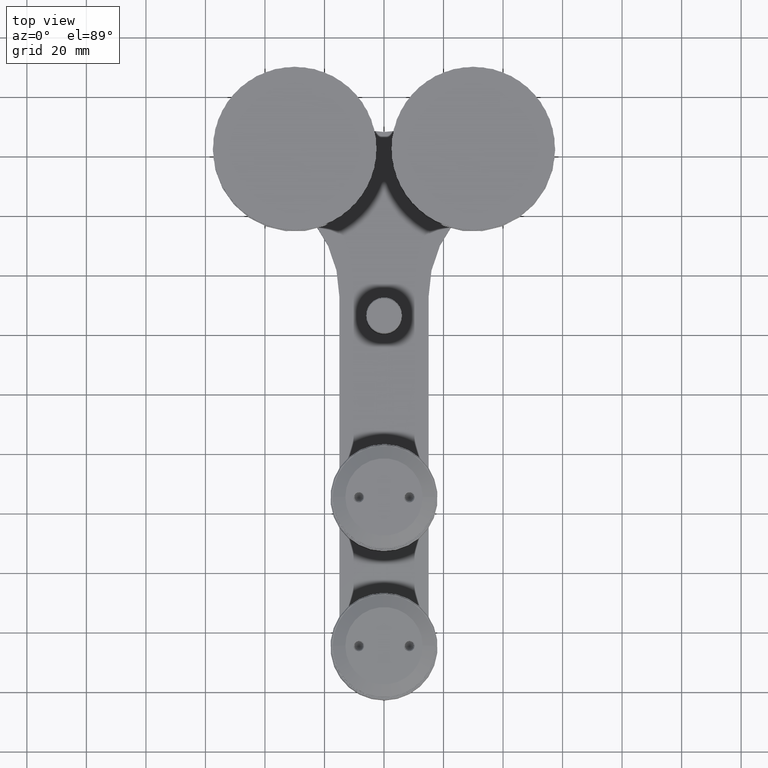
[diagram: clean part render]
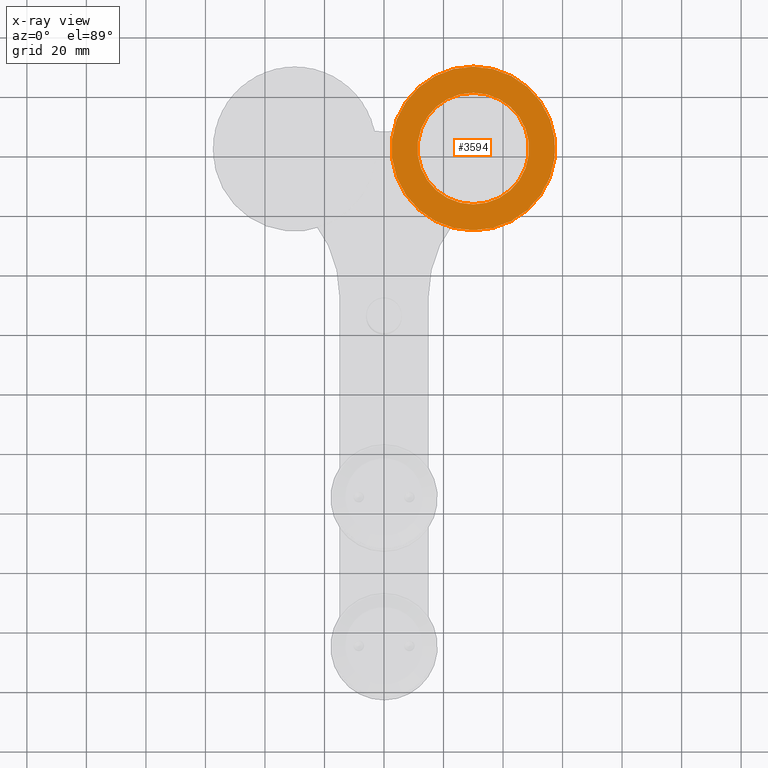
[diagram: x-ray — body ghosted, one internal face saturated and labeled with its STEP entity id]
A machine part, top view, then the same camera in x-ray: the body is ghosted and one INTERNAL B-rep face — a face not visible from any outside direction — is saturated and labeled: STEP entity #3594.
In plain terms, the highlighted planar face has unit normal (0, -0, -1).
Its self-contained STEP definition (entity closure, byte-faithful):
#258 = VERTEX_POINT ( 'NONE', #46003 ) ;
#613 = CIRCLE ( 'NONE', #13276, 27.50000000000000000 ) ;
#795 = DIRECTION ( 'NONE',  ( -0.0000000000000000000, -4.866999562630479900E-017, -1.000000000000000000 ) ) ;
#1369 = CARTESIAN_POINT ( 'NONE',  ( 0.0000000000000000000, -9.733999125260946200E-017, 19.00000000000000400 ) ) ;
#2999 = EDGE_CURVE ( 'NONE', #31072, #6381, #10195, .T. ) ;
#3551 = PLANE ( 'NONE',  #25782 ) ;
#3594 = ADVANCED_FACE ( 'NONE', ( #39828, #30318 ), #3551, .T. ) ;
#4311 = ORIENTED_EDGE ( 'NONE', *, *, #2999, .T. ) ;
#4445 = CIRCLE ( 'NONE', #33609, 18.74999999999999600 ) ;
#4833 = CARTESIAN_POINT ( 'NONE',  ( 3.367778697655221300E-015, -27.50000000000000000, 19.00000000000000400 ) ) ;
#6188 = EDGE_CURVE ( 'NONE', #8624, #258, #4445, .T. ) ;
#6381 = VERTEX_POINT ( 'NONE', #4833 ) ;
#7117 = DIRECTION ( 'NONE',  ( 0.0000000000000000000, -4.866999562630479900E-017, -1.000000000000000000 ) ) ;
#7633 = CARTESIAN_POINT ( 'NONE',  ( 0.0000000000000000000, -9.733999125260946200E-017, 19.00000000000000400 ) ) ;
#8012 = EDGE_LOOP ( 'NONE', ( #4311, #43703 ) ) ;
#8577 = CARTESIAN_POINT ( 'NONE',  ( 2.296212748401286800E-015, -18.74999999999999600, 19.00000000000000400 ) ) ;
#8624 = VERTEX_POINT ( 'NONE', #8577 ) ;
#10195 = CIRCLE ( 'NONE', #16460, 27.50000000000000000 ) ;
#11124 = DIRECTION ( 'NONE',  ( -0.0000000000000000000, -4.866999562630479900E-017, -1.000000000000000000 ) ) ;
#11131 = DIRECTION ( 'NONE',  ( 0.0000000000000000000, 1.000000000000000000, 0.0000000000000000000 ) ) ;
#11278 = DIRECTION ( 'NONE',  ( 0.0000000000000000000, 1.000000000000000000, 0.0000000000000000000 ) ) ;
#13216 = ORIENTED_EDGE ( 'NONE', *, *, #28403, .F. ) ;
#13276 = AXIS2_PLACEMENT_3D ( 'NONE', #7633, #795, #22310 ) ;
#16361 = CIRCLE ( 'NONE', #37470, 18.74999999999999600 ) ;
#16460 = AXIS2_PLACEMENT_3D ( 'NONE', #1369, #37604, #44506 ) ;
#19239 = EDGE_CURVE ( 'NONE', #6381, #31072, #613, .T. ) ;
#22310 = DIRECTION ( 'NONE',  ( 0.0000000000000000000, 1.000000000000000000, 0.0000000000000000000 ) ) ;
#25782 = AXIS2_PLACEMENT_3D ( 'NONE', #42319, #7117, #38852 ) ;
#28403 = EDGE_CURVE ( 'NONE', #258, #8624, #16361, .T. ) ;
#30318 = FACE_BOUND ( 'NONE', #33300, .T. ) ;
#31072 = VERTEX_POINT ( 'NONE', #34085 ) ;
#31155 = ORIENTED_EDGE ( 'NONE', *, *, #6188, .F. ) ;
#32385 = CARTESIAN_POINT ( 'NONE',  ( 0.0000000000000000000, -9.733999125260947500E-017, 19.00000000000000400 ) ) ;
#33300 = EDGE_LOOP ( 'NONE', ( #13216, #31155 ) ) ;
#33609 = AXIS2_PLACEMENT_3D ( 'NONE', #32385, #39700, #11131 ) ;
#34085 = CARTESIAN_POINT ( 'NONE',  ( 0.0000000000000000000, 27.50000000000000000, 19.00000000000000400 ) ) ;
#37470 = AXIS2_PLACEMENT_3D ( 'NONE', #39387, #11124, #11278 ) ;
#37604 = DIRECTION ( 'NONE',  ( -0.0000000000000000000, -4.866999562630479900E-017, -1.000000000000000000 ) ) ;
#38852 = DIRECTION ( 'NONE',  ( 0.0000000000000000000, 1.000000000000000000, -4.866999562630479900E-017 ) ) ;
#39387 = CARTESIAN_POINT ( 'NONE',  ( 0.0000000000000000000, -9.733999125260947500E-017, 19.00000000000000400 ) ) ;
#39700 = DIRECTION ( 'NONE',  ( -0.0000000000000000000, -4.866999562630479900E-017, -1.000000000000000000 ) ) ;
#39828 = FACE_OUTER_BOUND ( 'NONE', #8012, .T. ) ;
#42319 = CARTESIAN_POINT ( 'NONE',  ( 0.0000000000000000000, 18.74999999999999600, 19.00000000000000400 ) ) ;
#43703 = ORIENTED_EDGE ( 'NONE', *, *, #19239, .T. ) ;
#44506 = DIRECTION ( 'NONE',  ( 0.0000000000000000000, 1.000000000000000000, 0.0000000000000000000 ) ) ;
#46003 = CARTESIAN_POINT ( 'NONE',  ( 0.0000000000000000000, 18.74999999999999600, 19.00000000000000400 ) ) ;